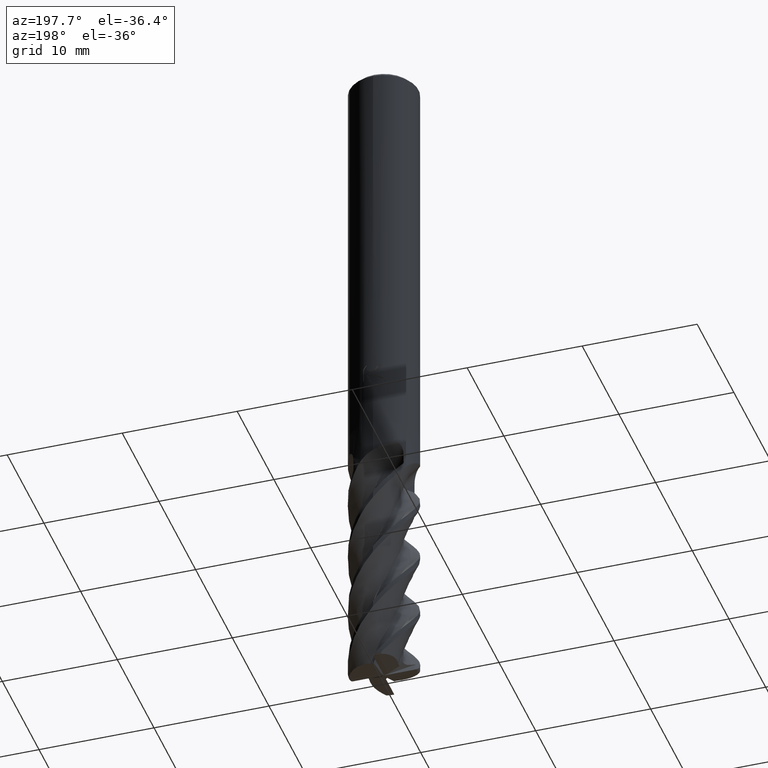
[diagram: clean part render]
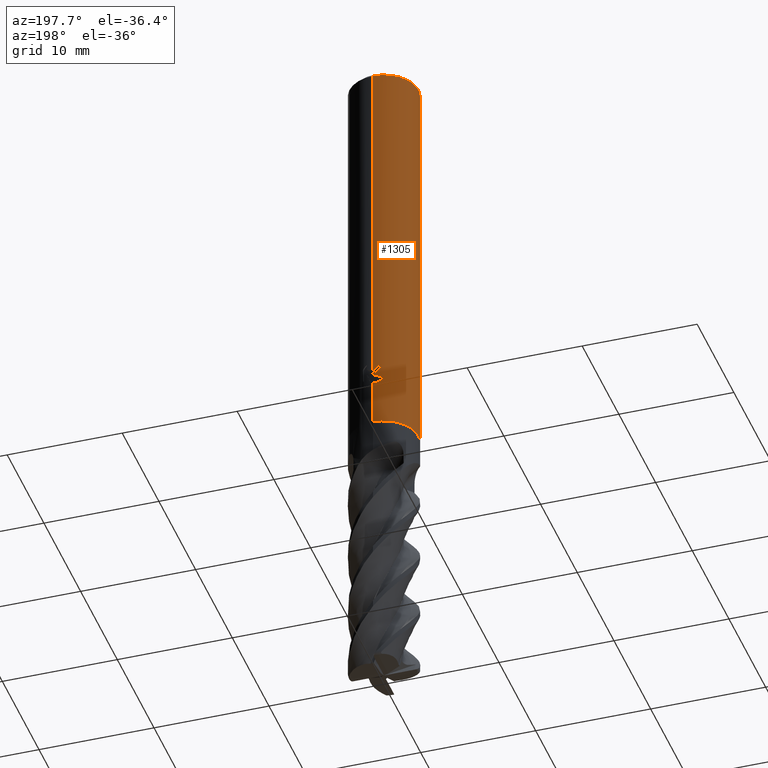
[diagram: same view with one face highlighted and labeled with its STEP entity id]
A machine part, auxiliary view. The second image highlights one B-rep face of the part: STEP entity #1305.
In plain terms, the highlighted cylindrical surface (edge-blend (fillet) strip) has radius 3 mm, axis along (-0, -0, 1).
Its self-contained STEP definition (entity closure, byte-faithful):
#755=EDGE_CURVE('',#1103,#1083,#1828,.T.);
#805=VERTEX_POINT('',#1884);
#911=EDGE_CURVE('',#1421,#1083,#1994,.T.);
#937=EDGE_CURVE('',#1237,#1163,#2023,.T.);
#965=VERTEX_POINT('',#2057);
#1005=EDGE_CURVE('',#1021,#1103,#2102,.T.);
#1021=VERTEX_POINT('',#2120);
#1039=EDGE_CURVE('',#1421,#1021,#2139,.T.);
#1077=EDGE_CURVE('',#1153,#1237,#2179,.T.);
#1083=VERTEX_POINT('',#2185);
#1103=VERTEX_POINT('',#2206);
#1105=EDGE_CURVE('',#1233,#805,#2208,.T.);
#1125=EDGE_CURVE('',#805,#965,#2229,.T.);
#1153=VERTEX_POINT('',#2259);
#1161=EDGE_CURVE('',#965,#1499,#2267,.T.);
#1163=VERTEX_POINT('',#2269);
#1209=VERTEX_POINT('',#2321);
#1233=VERTEX_POINT('',#2348);
#1237=VERTEX_POINT('',#2352);
#1243=EDGE_CURVE('',#1163,#1153,#2358,.T.);
#1305=ADVANCED_FACE('',(#2427,#2428,#2429),#2430,.T.);
#1327=EDGE_CURVE('',#1209,#1233,#2454,.T.);
#1395=EDGE_CURVE('',#1499,#1209,#2528,.T.);
#1421=VERTEX_POINT('',#2558);
#1499=VERTEX_POINT('',#2645);
#1828=LINE('',#4311,#4312);
#1884=CARTESIAN_POINT('',(-0.374883079288044,2.9764849532399,-30.2115112759038));
#1994=CIRCLE('',#5622,3.0);
#2023=LINE('',#5749,#5750);
#2057=CARTESIAN_POINT('',(-0.690037436273681,2.9195630386311,-30.2115112759038));
#2102=CIRCLE('',#6245,3.0);
#2120=CARTESIAN_POINT('',(3.67381906146713E-016,-3.0,-0.399999999999999));
#2139=LINE('',#6981,#6982);
#2179=B_SPLINE_CURVE_WITH_KNOTS('',3,(#7118,#7119,#7120,#7121,#7122,#7123,#7124,#7125,#7126,#7127),.UNSPECIFIED.,.F.,.F.,(4,2,2,2,4),(3.71798730591324,4.13127027719932,4.54460961578537,4.95794895437142,5.37052319276391),.UNSPECIFIED.);
#2185=CARTESIAN_POINT('',(0.0,3.0,-36.0));
#2206=CARTESIAN_POINT('',(0.0,3.0,-0.399999999999999));
#2208=B_SPLINE_CURVE_WITH_KNOTS('',3,(#7178,#7179,#7180,#7181,#7182,#7183,#7184,#7185,#7186,#7187,#7188,#7189,#7190,#7191,#7192,#7193,#7194,#7195,#7196,#7197,#7198,#7199,#7200,#7201,#7202,#7203,#7204),.UNSPECIFIED.,.F.,.F.,(4,2,3,2,2,2,2,2,2,2,2,2,4),(-0.361797878080094,-0.180898939040047,0.0,0.180898939040047,0.361797878080094,0.543164996745294,0.724532115410493,0.905110773244766,1.08568943107904,1.26650066090355,1.44731189072807,1.62812312055258,1.80893435037709),.UNSPECIFIED.);
#2229=CIRCLE('',#7322,3.0);
#2259=CARTESIAN_POINT('',(-0.891353646972586,2.86452241674396,-31.5814605734398));
#2267=B_SPLINE_CURVE_WITH_KNOTS('',3,(#7855,#7856,#7857,#7858,#7859,#7860,#7861,#7862,#7863,#7864,#7865,#7866,#7867,#7868),.UNSPECIFIED.,.F.,.F.,(4,2,2,2,2,2,4),(2.091097645352,2.38959558480883,2.68809352426566,2.9865914637225,3.28432857408577,3.58206568444903,3.88185771191667),.UNSPECIFIED.);
#2269=CARTESIAN_POINT('',(-0.017320435906062,2.99995,-31.1505476553539));
#2321=CARTESIAN_POINT('',(-0.0173204359060988,2.99995,-30.6780642368952));
#2348=CARTESIAN_POINT('',(-0.324247225918623,2.98242581407888,-30.428948685318));
#2352=CARTESIAN_POINT('',(-0.0173204359060761,2.99995,-32.0209133845535));
#2358=ELLIPSE('',#8526,3.34478529612858,3.0);
#2427=FACE_OUTER_BOUND('',#9180,.T.);
#2428=FACE_BOUND('',#9181,.T.);
#2429=FACE_BOUND('',#9182,.T.);
#2430=CYLINDRICAL_SURFACE('',#9183,3.0);
#2454=B_SPLINE_CURVE_WITH_KNOTS('',3,(#9214,#9215,#9216,#9217,#9218,#9219,#9220,#9221,#9222,#9223,#9224,#9225,#9226,#9227,#9228,#9229,#9230,#9231,#9232,#9233,#9234,#9235,#9236,#9237,#9238,#9239,#9240),.UNSPECIFIED.,.F.,.F.,(4,2,3,2,2,2,2,2,2,2,2,2,4),(-0.361797878080094,-0.180898939040047,0.0,0.180898939040047,0.361797878080094,0.543164996745294,0.724532115410493,0.905110773244766,1.08568943107904,1.26650066090355,1.44731189072807,1.62812312055258,1.80893435037709),.UNSPECIFIED.);
#2528=LINE('',#9784,#9785);
#2558=CARTESIAN_POINT('',(3.67381906146713E-016,-3.0,-36.0));
#2645=CARTESIAN_POINT('',(-0.0173204359060566,2.99995000000001,-30.9977581803456));
#4311=CARTESIAN_POINT('',(-3.67381906146713E-016,3.0,-18.2));
#4312=VECTOR('',#11620,1.0);
#5622=AXIS2_PLACEMENT_3D('',#11741,#11742,#11743);
#5749=CARTESIAN_POINT('',(-0.017320435906062,2.99995,-31.0105073647412));
#5750=VECTOR('',#11774,1.0);
#6245=AXIS2_PLACEMENT_3D('',#11908,#11909,#11910);
#6981=CARTESIAN_POINT('',(3.67381906146713E-016,-3.0,-18.2));
#6982=VECTOR('',#11965,1.0);
#7118=CARTESIAN_POINT('',(-1.0213107725762,2.82080206782039,-31.3523603909889));
#7119=CARTESIAN_POINT('',(-0.965748326062902,2.84091920915678,-31.4858586563829));
#7120=CARTESIAN_POINT('',(-0.882474008253195,2.86898278727422,-31.6070393018291));
#7121=CARTESIAN_POINT('',(-0.691181971660376,2.92097462682348,-31.7984209134462));
#7122=CARTESIAN_POINT('',(-0.569939118101217,2.94845792845378,-31.8818242986056));
#7123=CARTESIAN_POINT('',(-0.302738780934603,2.98773894197888,-31.9931051738375));
#7124=CARTESIAN_POINT('',(-0.156684840798735,2.99907204453492,-32.0209145449035));
#7125=CARTESIAN_POINT('',(0.118614216879023,3.00080717863586,-32.0209145449035));
#7126=CARTESIAN_POINT('',(0.264548965222022,2.99134988491468,-31.9931974310104));
#7127=CARTESIAN_POINT('',(0.398117192990064,2.97346644518577,-31.9376337934181));
#7178=CARTESIAN_POINT('',(0.443451175650266,2.96704416125113,-29.8758764058061));
#7179=CARTESIAN_POINT('',(0.485825230520439,2.96071098134951,-29.9183072631593));
#7180=CARTESIAN_POINT('',(0.522628634598451,2.95423041401874,-29.9720565977036));
#7181=CARTESIAN_POINT('',(0.571515479073374,2.94516350896329,-30.0900093998545));
#7182=CARTESIAN_POINT('',(0.583590928420811,2.94268952291351,-30.1542247886017));
#7183=CARTESIAN_POINT('',(0.583590928420811,2.94268952291351,-30.2145244349484));
#7184=CARTESIAN_POINT('',(0.583590928420811,2.94268952291351,-30.2748240812951));
#7185=CARTESIAN_POINT('',(0.571515479073373,2.94516350896329,-30.3390394700423));
#7186=CARTESIAN_POINT('',(0.522628634598449,2.95423041401874,-30.4569922721932));
#7187=CARTESIAN_POINT('',(0.485825230520439,2.96071098134951,-30.5107416067375));
#7188=CARTESIAN_POINT('',(0.400967453640913,2.97339373188344,-30.5957131355921));
#7189=CARTESIAN_POINT('',(0.347160591378598,2.98043595390805,-30.6326186343397));
#7190=CARTESIAN_POINT('',(0.229067490754341,2.99183004798448,-30.6816491335629));
#7191=CARTESIAN_POINT('',(0.164768311964613,2.99608182394725,-30.6937661750437));
#7192=CARTESIAN_POINT('',(0.0441927259273232,3.00027835150232,-30.6937661750437));
#7193=CARTESIAN_POINT('',(-0.0199849147074382,3.00051422459916,-30.6817432311485));
#7194=CARTESIAN_POINT('',(-0.138011899975601,2.99740516520178,-30.6328705536194));
#7195=CARTESIAN_POINT('',(-0.191865153226538,2.99416206152009,-30.5960238345305));
#7196=CARTESIAN_POINT('',(-0.276951356845971,2.9874941541864,-30.5110104084073));
#7197=CARTESIAN_POINT('',(-0.313857517624862,2.98363884435361,-30.4571404765947));
#7198=CARTESIAN_POINT('',(-0.362829872721121,2.97808021777493,-30.33903592618));
#7199=CARTESIAN_POINT('',(-0.374892551769672,2.97648376018208,-30.2747948448899));
#7200=CARTESIAN_POINT('',(-0.374892551769672,2.97648376018208,-30.1542540250069));
#7201=CARTESIAN_POINT('',(-0.362829872721121,2.97808021777493,-30.0900129437168));
#7202=CARTESIAN_POINT('',(-0.313857517624862,2.98363884435361,-29.9719083933022));
#7203=CARTESIAN_POINT('',(-0.276951356845971,2.9874941541864,-29.9180384614896));
#7204=CARTESIAN_POINT('',(-0.234380876478648,2.99083025341478,-29.8755043932883));
#7322=AXIS2_PLACEMENT_3D('',#12030,#12031,#12032);
#7855=CARTESIAN_POINT('',(-0.629727328037687,2.93316271153213,-29.9150913557644));
#7856=CARTESIAN_POINT('',(-0.670089755997728,2.92449721450026,-30.0122639601135));
#7857=CARTESIAN_POINT('',(-0.690061178540055,2.91955742705498,-30.1181316354559));
#7858=CARTESIAN_POINT('',(-0.690061178540055,2.91955742705498,-30.3171302617605));
#7859=CARTESIAN_POINT('',(-0.670089755997729,2.92449721450026,-30.4229979371029));
#7860=CARTESIAN_POINT('',(-0.589364900077663,2.94182820856402,-30.6173431458012));
#7861=CARTESIAN_POINT('',(-0.528629969212499,2.95390696563364,-30.7058560999866));
#7862=CARTESIAN_POINT('',(-0.388825924618277,2.97553438372319,-30.8454507471901));
#7863=CARTESIAN_POINT('',(-0.3003749985683,2.98650953771095,-30.9060152917628));
#7864=CARTESIAN_POINT('',(-0.106252469502453,2.99969577970094,-30.9864637231011));
#7865=CARTESIAN_POINT('',(-0.00055518822312943,3.0016411180253,-31.0063289843056));
#7866=CARTESIAN_POINT('',(0.198513504569518,2.99509240733468,-31.0063289843056));
#7867=CARTESIAN_POINT('',(0.304528894401637,2.98611319488251,-30.986217470731));
#7868=CARTESIAN_POINT('',(0.40167612134887,2.97298777218106,-30.9457873850085));
#8526=AXIS2_PLACEMENT_3D('',#12151,#12152,#12153);
#9180=EDGE_LOOP('',(#12265,#12266,#12267,#12268));
#9181=EDGE_LOOP('',(#12269,#12270,#12271));
#9182=EDGE_LOOP('',(#12272,#12273,#12274,#12275,#12276));
#9183=AXIS2_PLACEMENT_3D('',#12277,#12278,#12279);
#9214=CARTESIAN_POINT('',(0.443451175650266,2.96704416125113,-29.8758764058061));
#9215=CARTESIAN_POINT('',(0.485825230520439,2.96071098134951,-29.9183072631593));
#9216=CARTESIAN_POINT('',(0.522628634598451,2.95423041401874,-29.9720565977036));
#9217=CARTESIAN_POINT('',(0.571515479073374,2.94516350896329,-30.0900093998545));
#9218=CARTESIAN_POINT('',(0.583590928420811,2.94268952291351,-30.1542247886017));
#9219=CARTESIAN_POINT('',(0.583590928420811,2.94268952291351,-30.2145244349484));
#9220=CARTESIAN_POINT('',(0.583590928420811,2.94268952291351,-30.2748240812951));
#9221=CARTESIAN_POINT('',(0.571515479073373,2.94516350896329,-30.3390394700423));
#9222=CARTESIAN_POINT('',(0.522628634598449,2.95423041401874,-30.4569922721932));
#9223=CARTESIAN_POINT('',(0.485825230520439,2.96071098134951,-30.5107416067375));
#9224=CARTESIAN_POINT('',(0.400967453640913,2.97339373188344,-30.5957131355921));
#9225=CARTESIAN_POINT('',(0.347160591378598,2.98043595390805,-30.6326186343397));
#9226=CARTESIAN_POINT('',(0.229067490754341,2.99183004798448,-30.6816491335629));
#9227=CARTESIAN_POINT('',(0.164768311964613,2.99608182394725,-30.6937661750437));
#9228=CARTESIAN_POINT('',(0.0441927259273232,3.00027835150232,-30.6937661750437));
#9229=CARTESIAN_POINT('',(-0.0199849147074382,3.00051422459916,-30.6817432311485));
#9230=CARTESIAN_POINT('',(-0.138011899975601,2.99740516520178,-30.6328705536194));
#9231=CARTESIAN_POINT('',(-0.191865153226538,2.99416206152009,-30.5960238345305));
#9232=CARTESIAN_POINT('',(-0.276951356845971,2.9874941541864,-30.5110104084073));
#9233=CARTESIAN_POINT('',(-0.313857517624862,2.98363884435361,-30.4571404765947));
#9234=CARTESIAN_POINT('',(-0.362829872721121,2.97808021777493,-30.33903592618));
#9235=CARTESIAN_POINT('',(-0.374892551769672,2.97648376018208,-30.2747948448899));
#9236=CARTESIAN_POINT('',(-0.374892551769672,2.97648376018208,-30.1542540250069));
#9237=CARTESIAN_POINT('',(-0.362829872721121,2.97808021777493,-30.0900129437168));
#9238=CARTESIAN_POINT('',(-0.313857517624862,2.98363884435361,-29.9719083933022));
#9239=CARTESIAN_POINT('',(-0.276951356845971,2.9874941541864,-29.9180384614896));
#9240=CARTESIAN_POINT('',(-0.234380876478648,2.99083025341478,-29.8755043932883));
#9784=CARTESIAN_POINT('',(-0.017320435906062,2.99995,-31.0105073647412));
#9785=VECTOR('',#12378,1.0);
#11620=DIRECTION('',(0.0,0.0,-1.0));
#11741=CARTESIAN_POINT('',(0.0,0.0,-36.0));
#11742=DIRECTION('',(0.0,0.0,-1.0));
#11743=DIRECTION('',(0.0,1.0,0.0));
#11774=DIRECTION('',(-0.0,-0.0,1.0));
#11908=CARTESIAN_POINT('',(0.0,0.0,-0.399999999999999));
#11909=DIRECTION('',(0.0,0.0,-1.0));
#11910=DIRECTION('',(0.0,1.0,0.0));
#11965=DIRECTION('',(-0.0,-0.0,1.0));
#12030=CARTESIAN_POINT('',(0.0,0.0,-30.2115112759038));
#12031=DIRECTION('',(0.0,-0.0,1.0));
#12032=DIRECTION('',(0.0,1.0,0.0));
#12151=CARTESIAN_POINT('',(0.0,0.0,-31.1420083922181));
#12152=DIRECTION('',(-0.442195774284071,0.0,0.896918556617774));
#12153=DIRECTION('',(0.896918556617774,-0.0,0.442195774284071));
#12265=ORIENTED_EDGE('',*,*,#755,.T.);
#12266=ORIENTED_EDGE('',*,*,#911,.F.);
#12267=ORIENTED_EDGE('',*,*,#1039,.T.);
#12268=ORIENTED_EDGE('',*,*,#1005,.T.);
#12269=ORIENTED_EDGE('',*,*,#1077,.T.);
#12270=ORIENTED_EDGE('',*,*,#937,.T.);
#12271=ORIENTED_EDGE('',*,*,#1243,.T.);
#12272=ORIENTED_EDGE('',*,*,#1327,.T.);
#12273=ORIENTED_EDGE('',*,*,#1105,.T.);
#12274=ORIENTED_EDGE('',*,*,#1125,.T.);
#12275=ORIENTED_EDGE('',*,*,#1161,.T.);
#12276=ORIENTED_EDGE('',*,*,#1395,.T.);
#12277=CARTESIAN_POINT('',(0.0,0.0,-18.2));
#12278=DIRECTION('',(-0.0,-0.0,1.0));
#12279=DIRECTION('',(0.0,1.0,0.0));
#12378=DIRECTION('',(-0.0,-0.0,1.0));